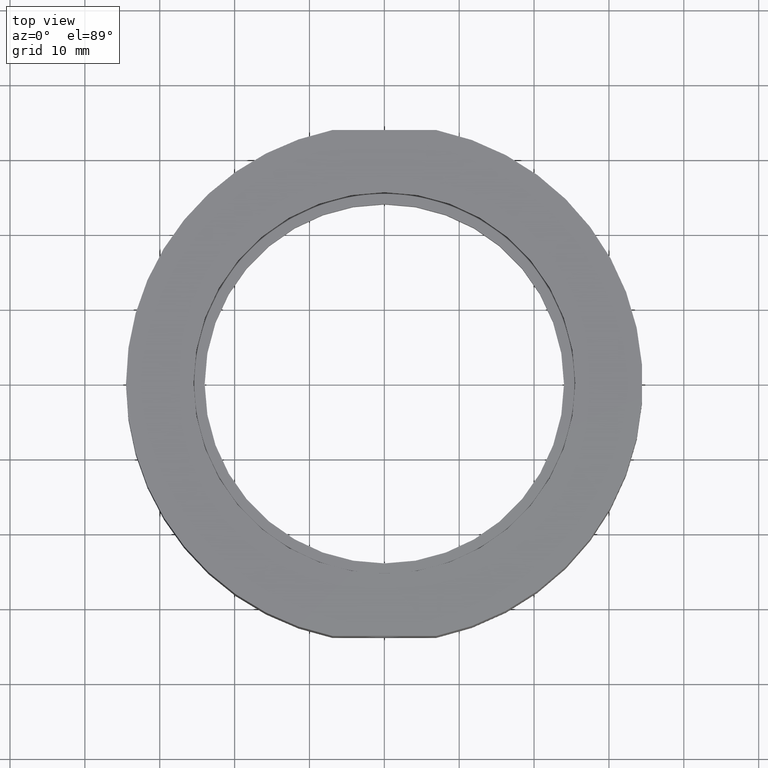
[diagram: clean part render]
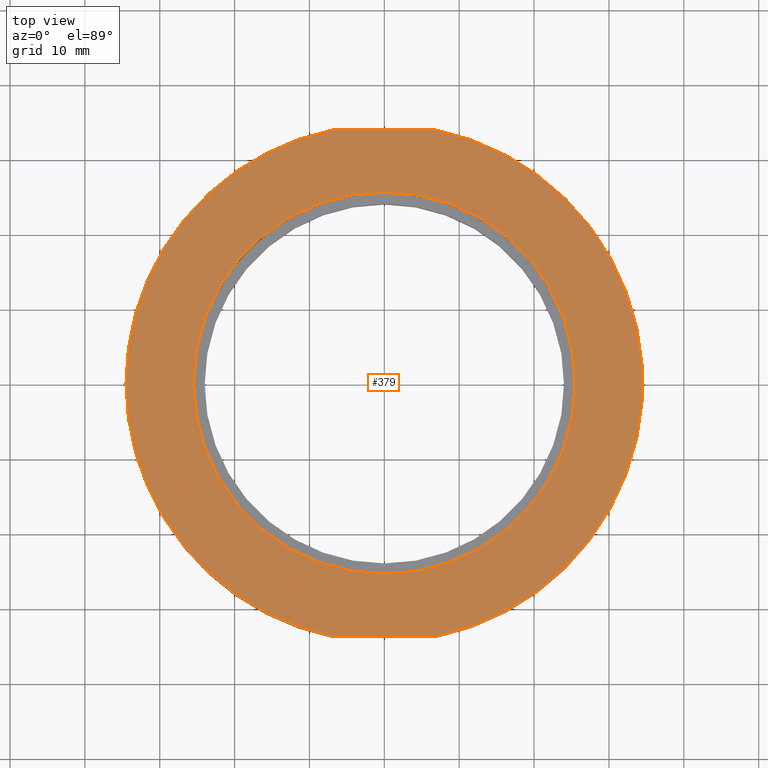
[diagram: same view with one face highlighted and labeled with its STEP entity id]
A machine part, top view. The second image highlights one B-rep face of the part: STEP entity #379.
In plain terms, the highlighted planar face has unit normal (-0, 0, -1).
Its self-contained STEP definition (entity closure, byte-faithful):
#28 = CARTESIAN_POINT ( 'NONE',  ( 6.914477565225009700, 33.79999999999999700, 7.500000000000000000 ) ) ;
#36 = ORIENTED_EDGE ( 'NONE', *, *, #752, .F. ) ;
#46 = CIRCLE ( 'NONE', #336, 34.49999999999998600 ) ;
#48 = DIRECTION ( 'NONE',  ( -1.224646799147350500E-016, -0.0000000000000000000, -1.000000000000000000 ) ) ;
#52 = CARTESIAN_POINT ( 'NONE',  ( -34.49999999999997900, 0.0000000000000000000, 7.500000000000010700 ) ) ;
#67 = LINE ( 'NONE', #279, #320 ) ;
#80 = CARTESIAN_POINT ( 'NONE',  ( -6.914477565224999000, 33.79999999999999700, 7.500000000000000000 ) ) ;
#86 = CARTESIAN_POINT ( 'NONE',  ( 4.829892851045829500E-015, 0.0000000000000000000, 7.500000000000007100 ) ) ;
#100 = EDGE_CURVE ( 'NONE', #136, #834, #148, .T. ) ;
#107 = DIRECTION ( 'NONE',  ( -1.000000000000000000, 0.0000000000000000000, 1.257045997084643400E-016 ) ) ;
#116 = ORIENTED_EDGE ( 'NONE', *, *, #335, .F. ) ;
#120 = AXIS2_PLACEMENT_3D ( 'NONE', #829, #606, #594 ) ;
#128 = AXIS2_PLACEMENT_3D ( 'NONE', #864, #210, #865 ) ;
#130 = DIRECTION ( 'NONE',  ( -1.000000000000000000, 0.0000000000000000000, 1.257045997084643400E-016 ) ) ;
#136 = VERTEX_POINT ( 'NONE', #569 ) ;
#141 = EDGE_CURVE ( 'NONE', #459, #868, #527, .T. ) ;
#148 = CIRCLE ( 'NONE', #687, 34.49999999999998600 ) ;
#149 = ORIENTED_EDGE ( 'NONE', *, *, #141, .T. ) ;
#150 = CARTESIAN_POINT ( 'NONE',  ( -25.49999999999999300, 0.0000000000000000000, 7.500000000000003600 ) ) ;
#194 = FACE_BOUND ( 'NONE', #708, .T. ) ;
#195 = ORIENTED_EDGE ( 'NONE', *, *, #739, .T. ) ;
#210 = DIRECTION ( 'NONE',  ( -1.224646799147350500E-016, -0.0000000000000000000, -1.000000000000000000 ) ) ;
#215 = FACE_OUTER_BOUND ( 'NONE', #567, .T. ) ;
#279 = CARTESIAN_POINT ( 'NONE',  ( -33.15197265346817100, 33.79999999999999700, 7.500000000000002700 ) ) ;
#293 = DIRECTION ( 'NONE',  ( -1.000000000000000000, -0.0000000000000000000, -0.0000000000000000000 ) ) ;
#320 = VECTOR ( 'NONE', #652, 1000.000000000000000 ) ;
#321 = CARTESIAN_POINT ( 'NONE',  ( 4.829892851045829500E-015, 0.0000000000000000000, 7.500000000000007100 ) ) ;
#335 = EDGE_CURVE ( 'NONE', #446, #503, #798, .T. ) ;
#336 = AXIS2_PLACEMENT_3D ( 'NONE', #321, #840, #107 ) ;
#356 = DIRECTION ( 'NONE',  ( -1.224646799147350500E-016, -0.0000000000000000000, -1.000000000000000000 ) ) ;
#357 = ORIENTED_EDGE ( 'NONE', *, *, #518, .F. ) ;
#379 = ADVANCED_FACE ( 'NONE', ( #215, #194 ), #755, .F. ) ;
#380 = DIRECTION ( 'NONE',  ( -1.224646799147350500E-016, -0.0000000000000000000, -1.000000000000000000 ) ) ;
#390 = CARTESIAN_POINT ( 'NONE',  ( 6.914477565225009700, -33.79999999999999700, 7.500000000000000000 ) ) ;
#408 = CIRCLE ( 'NONE', #128, 25.49999999999999600 ) ;
#435 = ORIENTED_EDGE ( 'NONE', *, *, #871, .F. ) ;
#446 = VERTEX_POINT ( 'NONE', #28 ) ;
#459 = VERTEX_POINT ( 'NONE', #905 ) ;
#460 = ORIENTED_EDGE ( 'NONE', *, *, #100, .F. ) ;
#503 = VERTEX_POINT ( 'NONE', #390 ) ;
#506 = DIRECTION ( 'NONE',  ( -1.000000000000000000, 0.0000000000000000000, 1.360567432138672300E-016 ) ) ;
#518 = EDGE_CURVE ( 'NONE', #834, #939, #46, .T. ) ;
#527 = CIRCLE ( 'NONE', #901, 25.49999999999999600 ) ;
#567 = EDGE_LOOP ( 'NONE', ( #460, #435, #116, #36, #357 ) ) ;
#569 = CARTESIAN_POINT ( 'NONE',  ( -6.914477565224999000, -33.79999999999999700, 7.500000000000000000 ) ) ;
#574 = CARTESIAN_POINT ( 'NONE',  ( 4.829892851045829500E-015, 0.0000000000000000000, 7.500000000000007100 ) ) ;
#591 = CARTESIAN_POINT ( 'NONE',  ( -33.15197265346817100, -33.79999999999999700, 7.500000000000002700 ) ) ;
#594 = DIRECTION ( 'NONE',  ( -1.000000000000000000, 0.0000000000000000000, 1.224646799147350500E-016 ) ) ;
#606 = DIRECTION ( 'NONE',  ( -1.224646799147350500E-016, 0.0000000000000000000, -1.000000000000000000 ) ) ;
#652 = DIRECTION ( 'NONE',  ( 1.000000000000000000, 0.0000000000000000000, 0.0000000000000000000 ) ) ;
#687 = AXIS2_PLACEMENT_3D ( 'NONE', #574, #48, #130 ) ;
#693 = VECTOR ( 'NONE', #293, 1000.000000000000000 ) ;
#708 = EDGE_LOOP ( 'NONE', ( #195, #149 ) ) ;
#739 = EDGE_CURVE ( 'NONE', #868, #459, #408, .T. ) ;
#752 = EDGE_CURVE ( 'NONE', #939, #446, #67, .T. ) ;
#755 = PLANE ( 'NONE',  #120 ) ;
#798 = CIRCLE ( 'NONE', #858, 34.49999999999998600 ) ;
#806 = CARTESIAN_POINT ( 'NONE',  ( 4.829892851045828800E-015, 0.0000000000000000000, 7.500000000000000000 ) ) ;
#829 = CARTESIAN_POINT ( 'NONE',  ( 34.49999999999999300, 0.0000000000000000000, 7.499999999999998200 ) ) ;
#834 = VERTEX_POINT ( 'NONE', #52 ) ;
#840 = DIRECTION ( 'NONE',  ( -1.224646799147350500E-016, -0.0000000000000000000, -1.000000000000000000 ) ) ;
#858 = AXIS2_PLACEMENT_3D ( 'NONE', #86, #380, #899 ) ;
#864 = CARTESIAN_POINT ( 'NONE',  ( 4.829892851045828800E-015, 0.0000000000000000000, 7.500000000000000000 ) ) ;
#865 = DIRECTION ( 'NONE',  ( -1.000000000000000000, 0.0000000000000000000, 1.360567432138672300E-016 ) ) ;
#868 = VERTEX_POINT ( 'NONE', #150 ) ;
#871 = EDGE_CURVE ( 'NONE', #503, #136, #902, .T. ) ;
#899 = DIRECTION ( 'NONE',  ( -1.000000000000000000, 0.0000000000000000000, 1.257045997084643400E-016 ) ) ;
#901 = AXIS2_PLACEMENT_3D ( 'NONE', #806, #356, #506 ) ;
#902 = LINE ( 'NONE', #591, #693 ) ;
#905 = CARTESIAN_POINT ( 'NONE',  ( 25.50000000000000000, 3.122849337825749800E-015, 7.499999999999996400 ) ) ;
#939 = VERTEX_POINT ( 'NONE', #80 ) ;